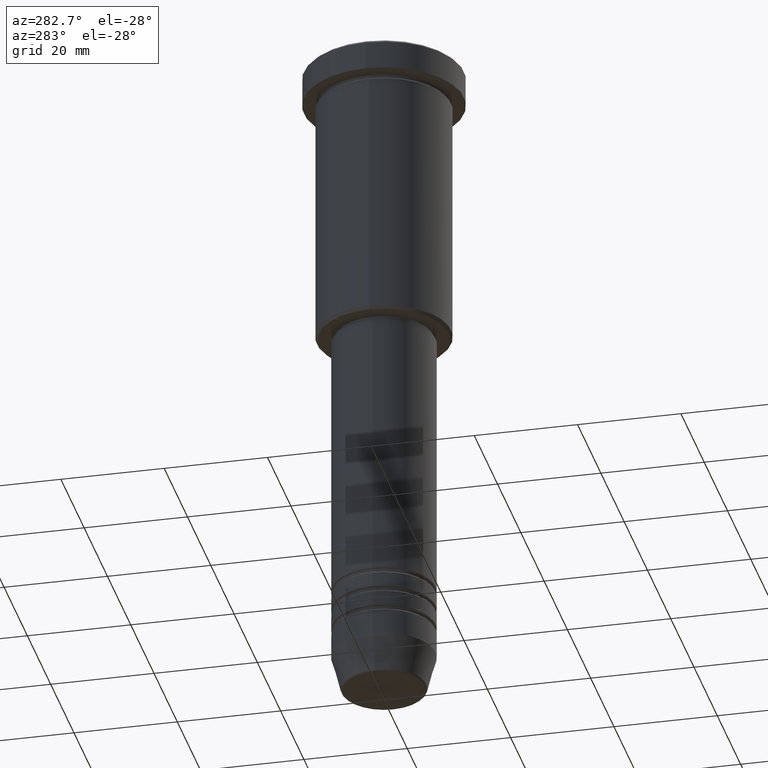
[diagram: clean part render]
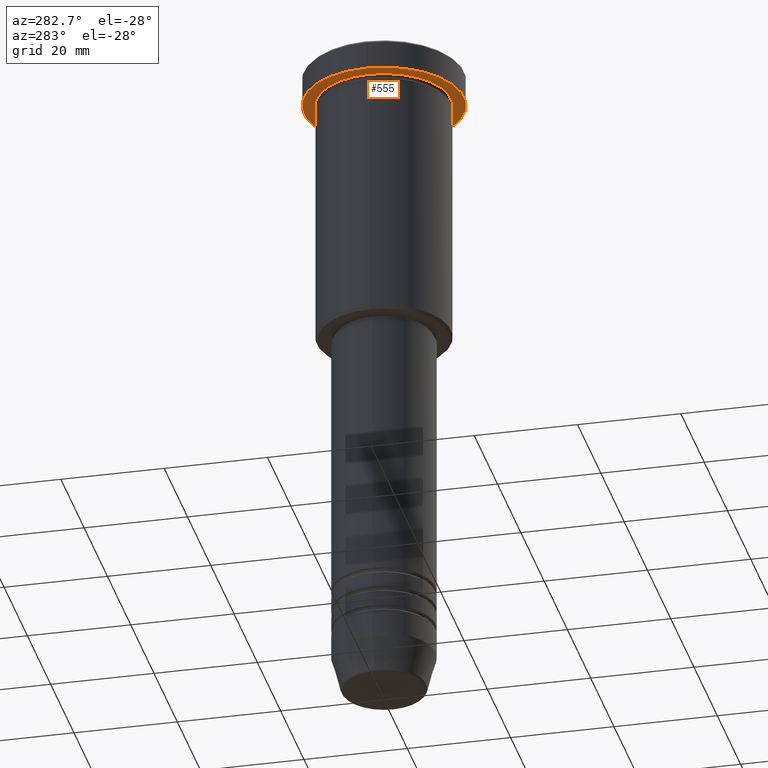
[diagram: same view with one face highlighted and labeled with its STEP entity id]
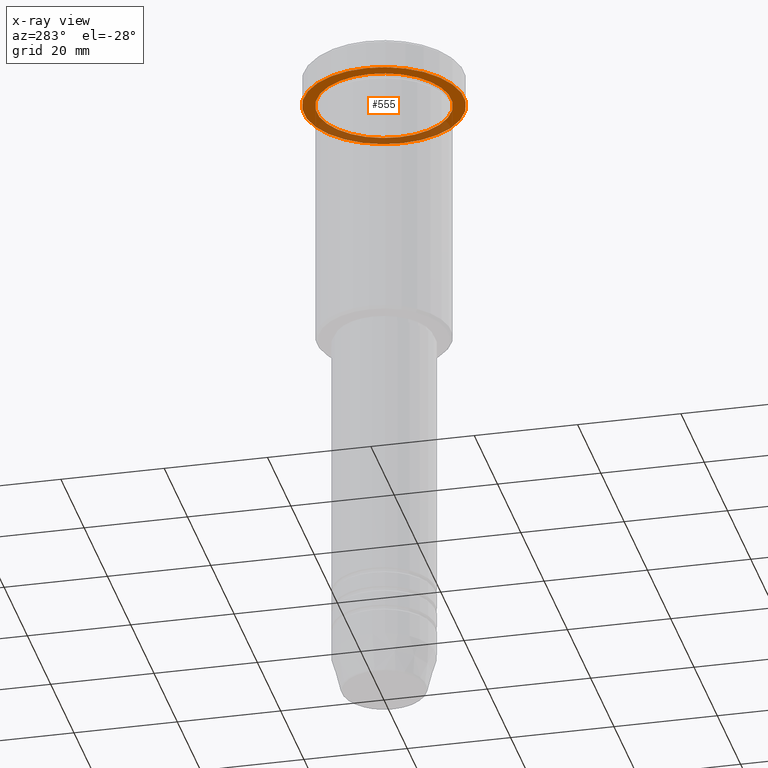
[diagram: x-ray of the same camera — body ghosted, the highlighted face saturated]
A machine part, auxiliary view. The second image highlights one B-rep face of the part: STEP entity #555.
The next image is the same camera in x-ray: the body ghosted, the highlighted face saturated — about 33% of this face is hidden behind the body in this view.
In plain terms, the highlighted planar face has unit normal (0, 0, -1).
Its self-contained STEP definition (entity closure, byte-faithful):
#2 = AXIS2_PLACEMENT_3D ( 'NONE', #653, #116, #1022 ) ;
#21 = ORIENTED_EDGE ( 'NONE', *, *, #1020, .F. ) ;
#104 = AXIS2_PLACEMENT_3D ( 'NONE', #476, #185, #551 ) ;
#116 = DIRECTION ( 'NONE',  ( -0.000000000000000000, -0.000000000000000000, 1.000000000000000000 ) ) ;
#185 = DIRECTION ( 'NONE',  ( -0.000000000000000000, -0.000000000000000000, 1.000000000000000000 ) ) ;
#223 = CIRCLE ( 'NONE', #894, 15.50000000000000000 ) ;
#248 = CIRCLE ( 'NONE', #104, 13.00000000000000000 ) ;
#266 = CIRCLE ( 'NONE', #2, 15.50000000000000000 ) ;
#274 = CARTESIAN_POINT ( 'NONE',  ( 0.000000000000000000, 0.000000000000000000, -5.999999999999995559 ) ) ;
#295 = FACE_OUTER_BOUND ( 'NONE', #848, .T. ) ;
#326 = VERTEX_POINT ( 'NONE', #408 ) ;
#369 = PLANE ( 'NONE',  #397 ) ;
#388 = FACE_BOUND ( 'NONE', #1175, .T. ) ;
#397 = AXIS2_PLACEMENT_3D ( 'NONE', #846, #850, #1081 ) ;
#408 = CARTESIAN_POINT ( 'NONE',  ( 13.00000000000000000, 1.592040838891559095E-15, -5.999999999999994671 ) ) ;
#476 = CARTESIAN_POINT ( 'NONE',  ( 0.000000000000000000, 0.000000000000000000, -5.999999999999995559 ) ) ;
#526 = ORIENTED_EDGE ( 'NONE', *, *, #749, .T. ) ;
#551 = DIRECTION ( 'NONE',  ( -1.000000000000000000, 0.000000000000000000, 0.000000000000000000 ) ) ;
#555 = ADVANCED_FACE ( 'NONE', ( #388, #295 ), #369, .T. ) ;
#575 = ORIENTED_EDGE ( 'NONE', *, *, #1096, .F. ) ;
#589 = VERTEX_POINT ( 'NONE', #746 ) ;
#613 = CARTESIAN_POINT ( 'NONE',  ( -15.50000000000000000, 1.898202538678397557E-15, -5.999999999999995559 ) ) ;
#630 = DIRECTION ( 'NONE',  ( -0.000000000000000000, -0.000000000000000000, 1.000000000000000000 ) ) ;
#632 = DIRECTION ( 'NONE',  ( -0.000000000000000000, -0.000000000000000000, 1.000000000000000000 ) ) ;
#634 = VERTEX_POINT ( 'NONE', #917 ) ;
#653 = CARTESIAN_POINT ( 'NONE',  ( 0.000000000000000000, 0.000000000000000000, -5.999999999999995559 ) ) ;
#729 = VERTEX_POINT ( 'NONE', #613 ) ;
#736 = AXIS2_PLACEMENT_3D ( 'NONE', #824, #632, #809 ) ;
#746 = CARTESIAN_POINT ( 'NONE',  ( -13.00000000000000000, 0.000000000000000000, -5.999999999999994671 ) ) ;
#749 = EDGE_CURVE ( 'NONE', #589, #326, #1092, .T. ) ;
#809 = DIRECTION ( 'NONE',  ( -1.000000000000000000, 0.000000000000000000, 0.000000000000000000 ) ) ;
#824 = CARTESIAN_POINT ( 'NONE',  ( 0.000000000000000000, 0.000000000000000000, -5.999999999999995559 ) ) ;
#846 = CARTESIAN_POINT ( 'NONE',  ( 0.000000000000000000, 15.50000000000000000, -5.999999999999995559 ) ) ;
#848 = EDGE_LOOP ( 'NONE', ( #575, #21 ) ) ;
#850 = DIRECTION ( 'NONE',  ( 0.000000000000000000, 0.000000000000000000, -1.000000000000000000 ) ) ;
#894 = AXIS2_PLACEMENT_3D ( 'NONE', #274, #630, #1094 ) ;
#917 = CARTESIAN_POINT ( 'NONE',  ( 15.50000000000000000, 0.000000000000000000, -5.999999999999995559 ) ) ;
#949 = ORIENTED_EDGE ( 'NONE', *, *, #1054, .T. ) ;
#1020 = EDGE_CURVE ( 'NONE', #729, #634, #223, .T. ) ;
#1022 = DIRECTION ( 'NONE',  ( 1.000000000000000000, 0.000000000000000000, 0.000000000000000000 ) ) ;
#1054 = EDGE_CURVE ( 'NONE', #326, #589, #248, .T. ) ;
#1081 = DIRECTION ( 'NONE',  ( -1.000000000000000000, 0.000000000000000000, -0.000000000000000000 ) ) ;
#1092 = CIRCLE ( 'NONE', #736, 13.00000000000000000 ) ;
#1094 = DIRECTION ( 'NONE',  ( 1.000000000000000000, 0.000000000000000000, 0.000000000000000000 ) ) ;
#1096 = EDGE_CURVE ( 'NONE', #634, #729, #266, .T. ) ;
#1175 = EDGE_LOOP ( 'NONE', ( #526, #949 ) ) ;